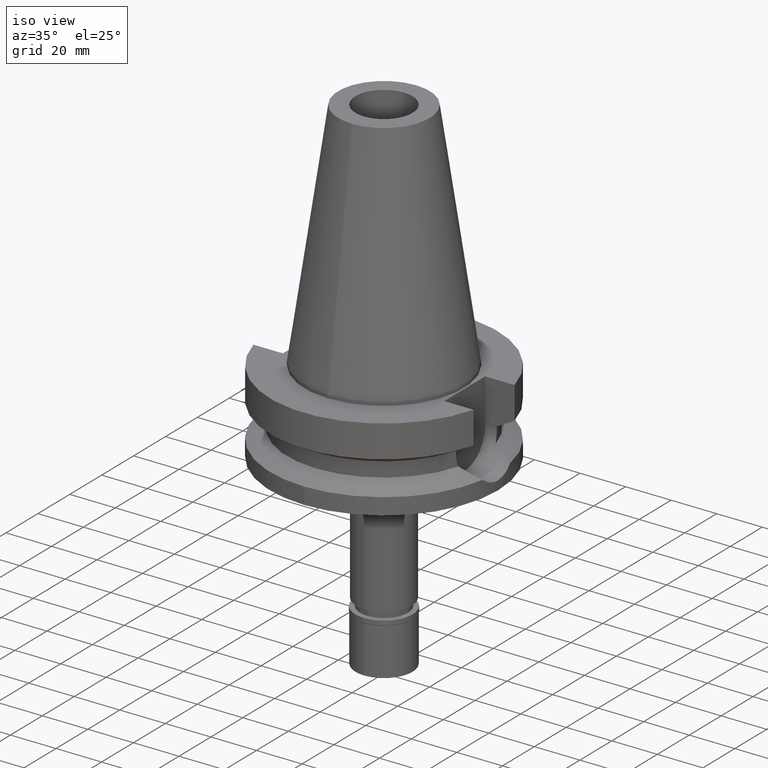
[diagram: clean part render]
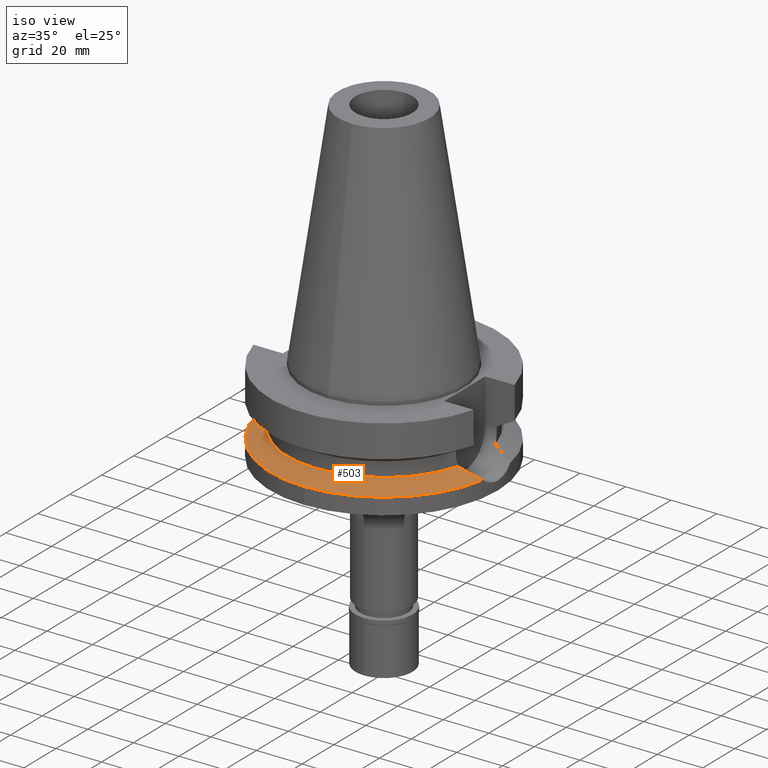
[diagram: same view with one face highlighted and labeled with its STEP entity id]
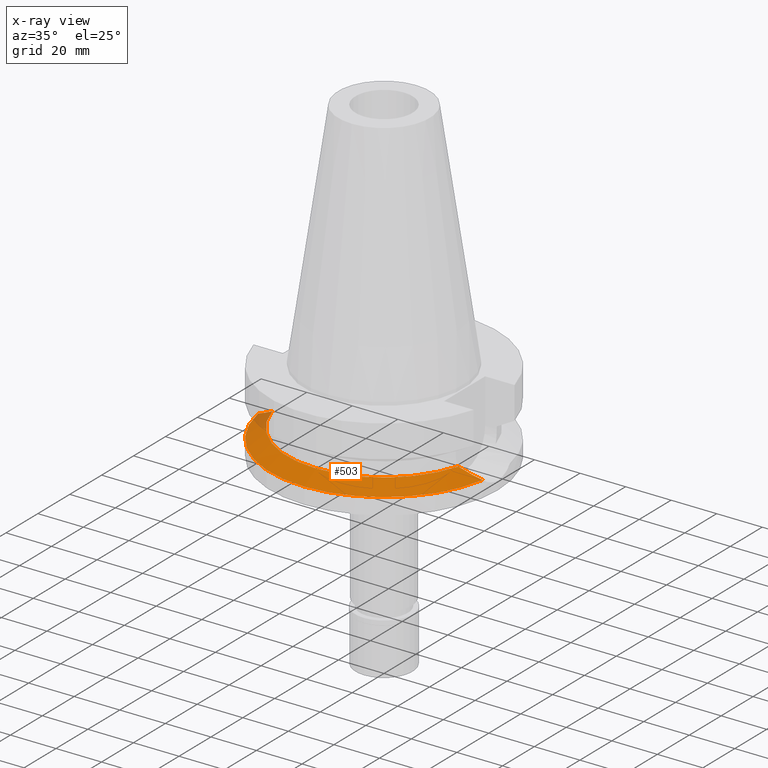
[diagram: x-ray of the same camera — body ghosted, the highlighted face saturated]
A machine part, iso view. The second image highlights one B-rep face of the part: STEP entity #503.
The next image is the same camera in x-ray: the body ghosted, the highlighted face saturated — about 3% of this face is hidden behind the body in this view.
In plain terms, the highlighted conical surface has half-angle 60 deg.
Its self-contained STEP definition (entity closure, byte-faithful):
#53 = CARTESIAN_POINT ( 'NONE',  ( 49.26250064874000145, -8.556052234130000045, -30.73730776426999967 ) ) ;
#64 = ORIENTED_EDGE ( 'NONE', *, *, #1733, .F. ) ;
#71 = AXIS2_PLACEMENT_3D ( 'NONE', #617, #1767, #1043 ) ;
#113 = EDGE_CURVE ( 'NONE', #915, #1362, #1758, .T. ) ;
#124 = B_SPLINE_CURVE_WITH_KNOTS ( 'NONE', 3,
 ( #1503, #2956, #311, #2517, #1365, #293 ),
 .UNSPECIFIED., .F., .F.,
 ( 4, 2, 4 ),
 ( 0.0000000000000000000, 0.5000000000000000000, 1.000000000000000000 ),
 .UNSPECIFIED. ) ;
#132 = CARTESIAN_POINT ( 'NONE',  ( -45.33558130651910290, -10.38219340387792400, -28.72182950355348652 ) ) ;
#169 = AXIS2_PLACEMENT_3D ( 'NONE', #1197, #1652, #2137 ) ;
#293 = CARTESIAN_POINT ( 'NONE',  ( 49.26250064874000145, -8.556052234130000045, -30.73730776426999967 ) ) ;
#311 = CARTESIAN_POINT ( 'NONE',  ( 44.24115855577480261, -10.80620188898947909, -28.15910934141761857 ) ) ;
#321 = EDGE_LOOP ( 'NONE', ( #1582, #2803, #696, #1572, #64 ) ) ;
#341 = CARTESIAN_POINT ( 'NONE',  ( 40.85052569294000335, -11.72538061688000077, -26.40718074535000426 ) ) ;
#350 = CARTESIAN_POINT ( 'NONE',  ( -47.10062573306257150, -9.658166437217474254, -29.62904044838422379 ) ) ;
#358 = CARTESIAN_POINT ( 'NONE',  ( 0.0000000000000000000, 0.0000000000000000000, -26.40718074535000426 ) ) ;
#381 = CARTESIAN_POINT ( 'NONE',  ( -45.34871274248835959, -10.37726403806229847, -28.72858470018429955 ) ) ;
#411 = DIRECTION ( 'NONE',  ( 0.0000000000000000000, -1.000000000000000000, 0.0000000000000000000 ) ) ;
#452 = AXIS2_PLACEMENT_3D ( 'NONE', #898, #2398, #411 ) ;
#503 = ADVANCED_FACE ( 'NONE', ( #940 ), #1558, .T. ) ;
#544 = DIRECTION ( 'NONE',  ( 0.0000000000000000000, -1.000000000000000000, 0.0000000000000000000 ) ) ;
#593 = CIRCLE ( 'NONE', #71, 50.00000000000000000 ) ;
#617 = CARTESIAN_POINT ( 'NONE',  ( 0.0000000000000000000, 0.0000000000000000000, -30.73730776426999967 ) ) ;
#623 = CARTESIAN_POINT ( 'NONE',  ( -48.69615962450392743, -8.881056063516107102, -30.44726286231330548 ) ) ;
#627 = B_SPLINE_CURVE_WITH_KNOTS ( 'NONE', 3,
 ( #2793, #623, #2037, #350, #2066, #1321, #2567, #1550, #1331, #633, #1607, #381, #132, #1111, #2260, #2297 ),
 .UNSPECIFIED., .F., .F.,
 ( 4, 2, 2, 1, 1, 1, 1, 2, 2, 4 ),
 ( 0.0000000000000000000, 0.2499999999999673039, 0.3749999999999510392, 0.4374999999999428790, 0.4687499999999387157, 0.4843749999999368283, 0.4921874999999356626, 0.4960937499999357181, 0.4999999999999357181, 1.000000000000000000 ),
 .UNSPECIFIED. ) ;
#633 = CARTESIAN_POINT ( 'NONE',  ( -45.40685316956421502, -10.35537136016780302, -28.75849317422472851 ) ) ;
#667 = VERTEX_POINT ( 'NONE', #53 ) ;
#696 = ORIENTED_EDGE ( 'NONE', *, *, #1326, .F. ) ;
#799 = CIRCLE ( 'NONE', #452, 50.00000000000000000 ) ;
#898 = CARTESIAN_POINT ( 'NONE',  ( 0.0000000000000000000, 0.0000000000000000000, -30.73730776426999967 ) ) ;
#915 = VERTEX_POINT ( 'NONE', #2714 ) ;
#940 = FACE_OUTER_BOUND ( 'NONE', #321, .T. ) ;
#965 = VERTEX_POINT ( 'NONE', #2395 ) ;
#1043 = DIRECTION ( 'NONE',  ( 0.9852500129747439050, -0.1711210446826074982, 0.0000000000000000000 ) ) ;
#1090 = DIRECTION ( 'NONE',  ( 0.0000000000000000000, 0.0000000000000000000, 1.000000000000000000 ) ) ;
#1111 = CARTESIAN_POINT ( 'NONE',  ( -44.02354865488474189, -10.87392422435491390, -28.04687368141357595 ) ) ;
#1197 = CARTESIAN_POINT ( 'NONE',  ( 0.0000000000000000000, 0.0000000000000000000, -28.57224425480999841 ) ) ;
#1321 = CARTESIAN_POINT ( 'NONE',  ( -46.23547828827267381, -10.02902890545345826, -29.18458739690745318 ) ) ;
#1326 = EDGE_CURVE ( 'NONE', #1362, #667, #124, .T. ) ;
#1331 = CARTESIAN_POINT ( 'NONE',  ( -45.48798875577153922, -10.32463230178752056, -28.80022886628352552 ) ) ;
#1362 = VERTEX_POINT ( 'NONE', #341 ) ;
#1365 = CARTESIAN_POINT ( 'NONE',  ( 48.20270769199963468, -9.164231325094833736, -30.19454725235757309 ) ) ;
#1415 = VERTEX_POINT ( 'NONE', #2855 ) ;
#1503 = CARTESIAN_POINT ( 'NONE',  ( 40.85052569294000335, -11.72538061688000077, -26.40718074535000426 ) ) ;
#1550 = CARTESIAN_POINT ( 'NONE',  ( -45.64933871042544666, -10.26284192092931313, -28.88321936982104532 ) ) ;
#1558 = CONICAL_SURFACE ( 'NONE', #169, 46.25000000000000000, 1.047197551196400456 ) ;
#1572 = ORIENTED_EDGE ( 'NONE', *, *, #113, .F. ) ;
#1582 = ORIENTED_EDGE ( 'NONE', *, *, #1935, .F. ) ;
#1607 = CARTESIAN_POINT ( 'NONE',  ( -45.37198207357243263, -10.36851148745461337, -28.74055495389173132 ) ) ;
#1652 = DIRECTION ( 'NONE',  ( 0.0000000000000000000, 0.0000000000000000000, -1.000000000000000000 ) ) ;
#1733 = EDGE_CURVE ( 'NONE', #1415, #915, #627, .T. ) ;
#1758 = CIRCLE ( 'NONE', #2054, 42.50000000000000000 ) ;
#1767 = DIRECTION ( 'NONE',  ( 0.0000000000000000000, 0.0000000000000000000, -1.000000000000000000 ) ) ;
#1935 = EDGE_CURVE ( 'NONE', #965, #1415, #799, .T. ) ;
#2037 = CARTESIAN_POINT ( 'NONE',  ( -48.08489826755508290, -9.198658406699152579, -30.13411970836226672 ) ) ;
#2054 = AXIS2_PLACEMENT_3D ( 'NONE', #358, #1090, #544 ) ;
#2066 = CARTESIAN_POINT ( 'NONE',  ( -46.76130480505354114, -9.808513980595389370, -29.45479471102847668 ) ) ;
#2137 = DIRECTION ( 'NONE',  ( 0.0000000000000000000, -1.000000000000000000, 0.0000000000000000000 ) ) ;
#2260 = CARTESIAN_POINT ( 'NONE',  ( -42.53192038227472693, -11.33491295351486983, -27.27806234393252183 ) ) ;
#2297 = CARTESIAN_POINT ( 'NONE',  ( -40.85052569294000335, -11.72538061688000077, -26.40718074535000426 ) ) ;
#2395 = CARTESIAN_POINT ( 'NONE',  ( 0.0000000000000000000, -50.00000000000000000, -30.73730776426999967 ) ) ;
#2398 = DIRECTION ( 'NONE',  ( 0.0000000000000000000, 0.0000000000000000000, -1.000000000000000000 ) ) ;
#2517 = CARTESIAN_POINT ( 'NONE',  ( 46.98648068205852013, -9.746307651981178211, -29.57087288696845917 ) ) ;
#2567 = CARTESIAN_POINT ( 'NONE',  ( -45.96835374869042568, -10.13803428272698959, -29.04727495185490582 ) ) ;
#2714 = CARTESIAN_POINT ( 'NONE',  ( -40.85052569294000335, -11.72538061688000077, -26.40718074535000426 ) ) ;
#2751 = EDGE_CURVE ( 'NONE', #667, #965, #593, .T. ) ;
#2793 = CARTESIAN_POINT ( 'NONE',  ( -49.26250064874000145, -8.556052234130000045, -30.73730776426999967 ) ) ;
#2803 = ORIENTED_EDGE ( 'NONE', *, *, #2751, .F. ) ;
#2855 = CARTESIAN_POINT ( 'NONE',  ( -49.26250064874000145, -8.556052234130000045, -30.73730776426999967 ) ) ;
#2956 = CARTESIAN_POINT ( 'NONE',  ( 42.65297510633157430, -11.30680060396583109, -27.34076287002515926 ) ) ;